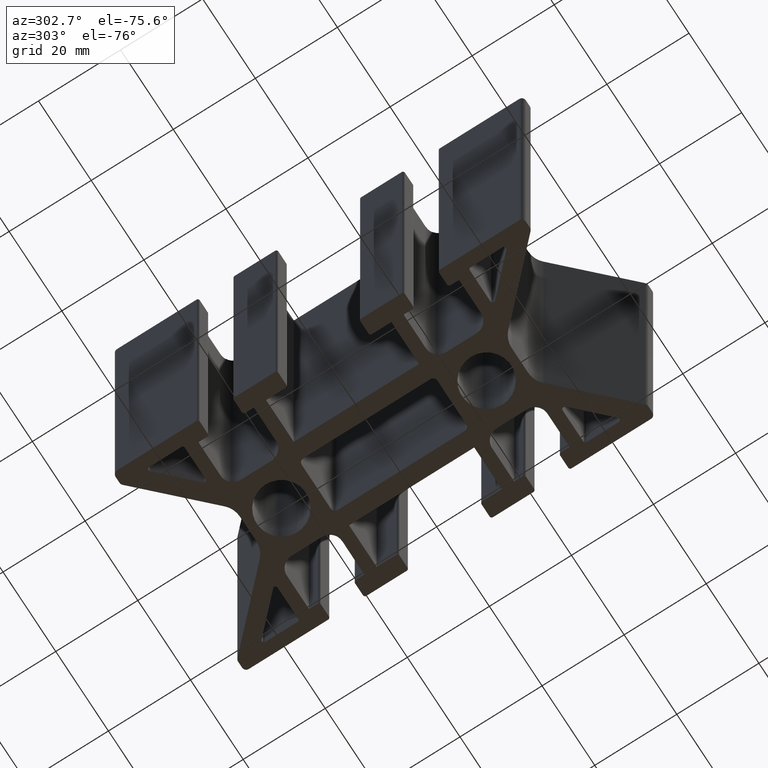
[diagram: clean part render]
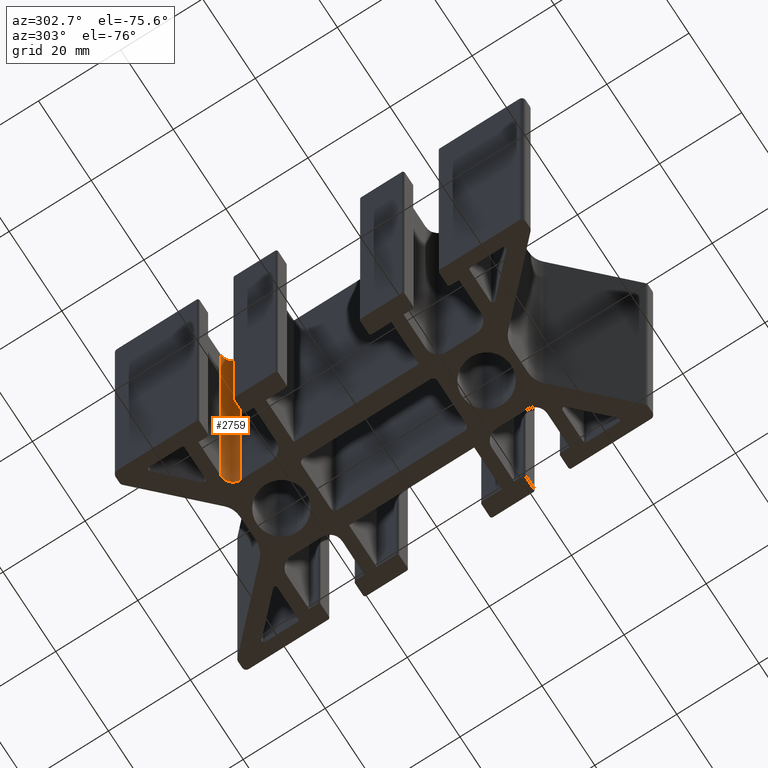
[diagram: same view with one face highlighted and labeled with its STEP entity id]
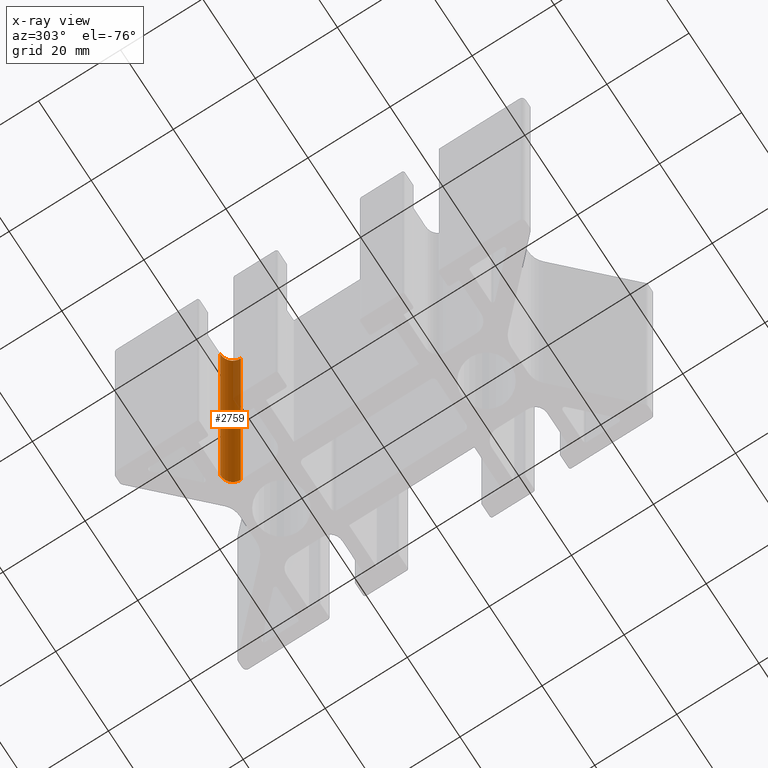
[diagram: x-ray of the same camera — body ghosted, the highlighted face saturated]
A machine part, auxiliary view. The second image highlights one B-rep face of the part: STEP entity #2759.
The next image is the same camera in x-ray: the body ghosted, the highlighted face saturated — about 14% of this face is hidden behind the body in this view.
In plain terms, the highlighted cylindrical surface (edge-blend (fillet) strip) has radius 3 mm, axis along (0, 0, 1).
Its self-contained STEP definition (entity closure, byte-faithful):
#189=FACE_OUTER_BOUND('',#338,.T.);
#338=EDGE_LOOP('',(#2243,#2244,#2245,#2246));
#460=CIRCLE('',#2911,3.00000000000004);
#504=CIRCLE('',#3001,3.00000000000004);
#724=LINE('',#4496,#1012);
#725=LINE('',#4500,#1013);
#1012=VECTOR('',#3640,100.);
#1013=VECTOR('',#3645,100.);
#1219=VERTEX_POINT('',#4198);
#1220=VERTEX_POINT('',#4200);
#1322=VERTEX_POINT('',#4494);
#1323=VERTEX_POINT('',#4498);
#1527=EDGE_CURVE('',#1219,#1220,#460,.T.);
#1675=EDGE_CURVE('',#1219,#1322,#724,.T.);
#1676=EDGE_CURVE('',#1323,#1322,#504,.T.);
#1677=EDGE_CURVE('',#1220,#1323,#725,.T.);
#2243=ORIENTED_EDGE('',*,*,#1675,.T.);
#2244=ORIENTED_EDGE('',*,*,#1676,.F.);
#2245=ORIENTED_EDGE('',*,*,#1677,.F.);
#2246=ORIENTED_EDGE('',*,*,#1527,.F.);
#2654=CYLINDRICAL_SURFACE('',#3000,3.00000000000004);
#2759=ADVANCED_FACE('',(#189),#2654,.F.);
#2911=AXIS2_PLACEMENT_3D('',#4201,#3358,#3359);
#3000=AXIS2_PLACEMENT_3D('',#4497,#3641,#3642);
#3001=AXIS2_PLACEMENT_3D('',#4499,#3643,#3644);
#3358=DIRECTION('center_axis',(0.,0.,1.));
#3359=DIRECTION('ref_axis',(-1.,0.,0.));
#3640=DIRECTION('',(0.,0.,1.));
#3641=DIRECTION('center_axis',(0.,0.,1.));
#3642=DIRECTION('ref_axis',(-1.,0.,0.));
#3643=DIRECTION('center_axis',(0.,0.,-1.));
#3644=DIRECTION('ref_axis',(-1.,0.,0.));
#3645=DIRECTION('',(0.,0.,1.));
#4198=CARTESIAN_POINT('',(-9.59999999998993,28.7500000000084,-50.));
#4200=CARTESIAN_POINT('',(-12.5999999999899,31.7500000000084,-50.));
#4201=CARTESIAN_POINT('Origin',(-12.5999999999899,28.7500000000084,-50.));
#4494=CARTESIAN_POINT('',(-9.59999999998993,28.7500000000084,50.));
#4496=CARTESIAN_POINT('',(-9.59999999998993,28.7500000000084,0.));
#4497=CARTESIAN_POINT('Origin',(-12.5999999999899,28.7500000000084,0.));
#4498=CARTESIAN_POINT('',(-12.5999999999899,31.7500000000084,50.));
#4499=CARTESIAN_POINT('Origin',(-12.5999999999899,28.7500000000084,50.));
#4500=CARTESIAN_POINT('',(-12.5999999999899,31.7500000000084,0.));